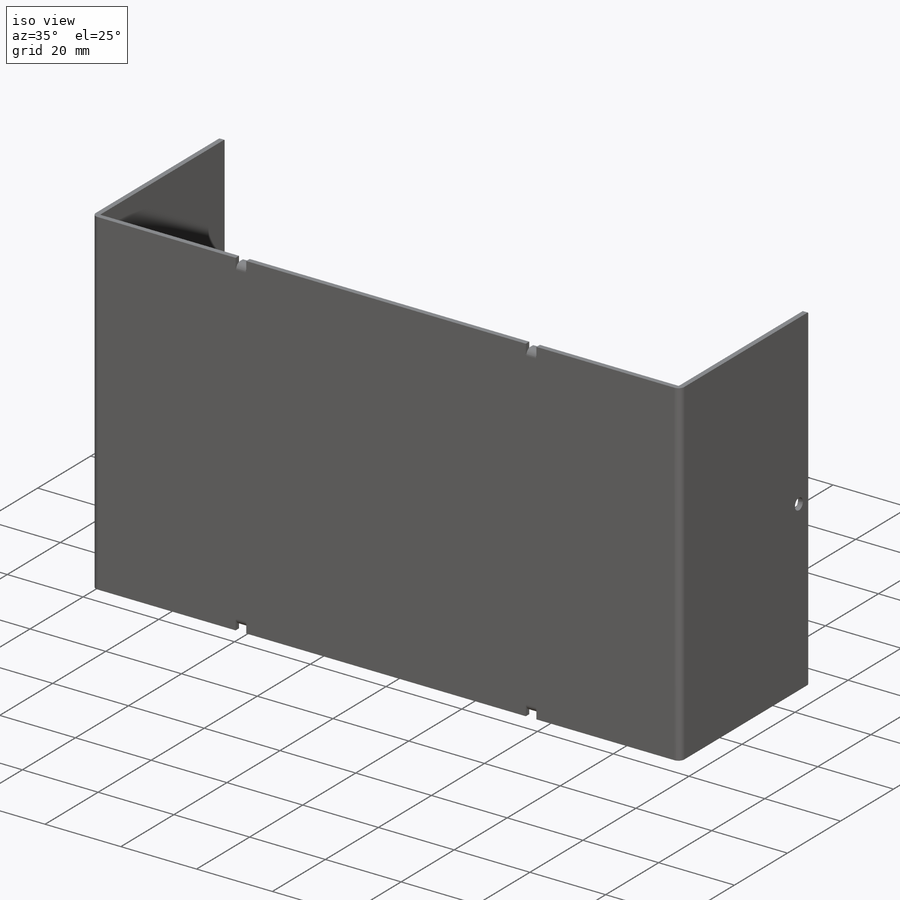
[diagram: iso view]
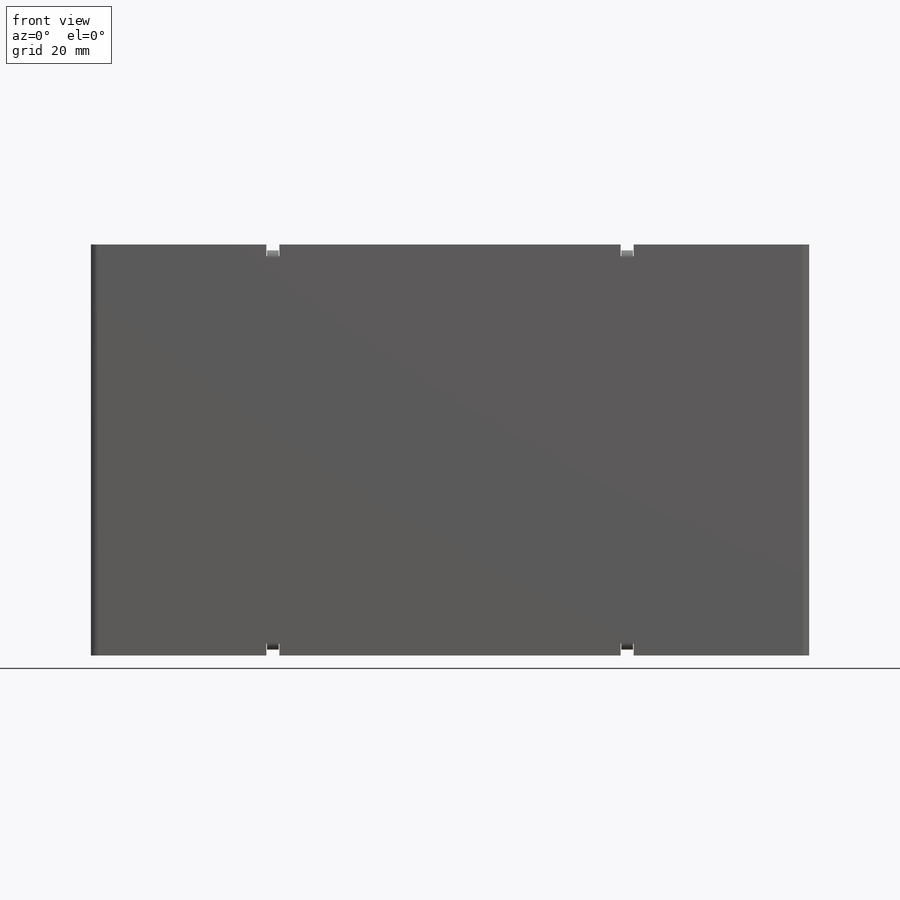
[diagram: front view]
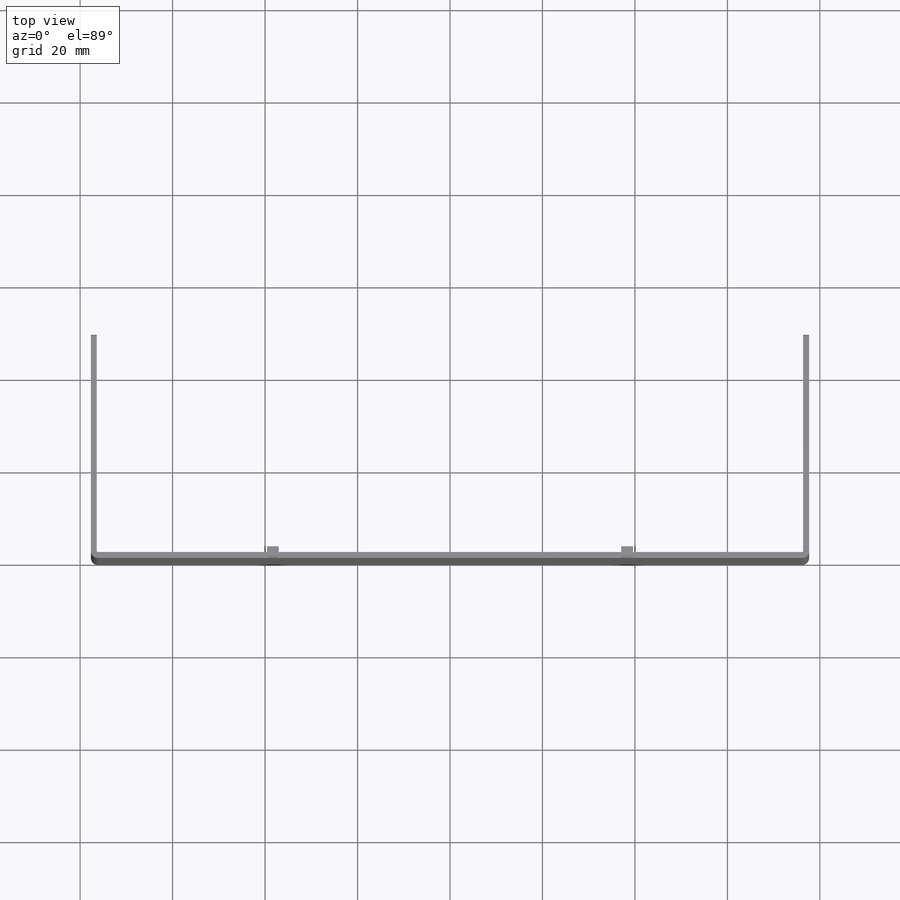
[diagram: top view]
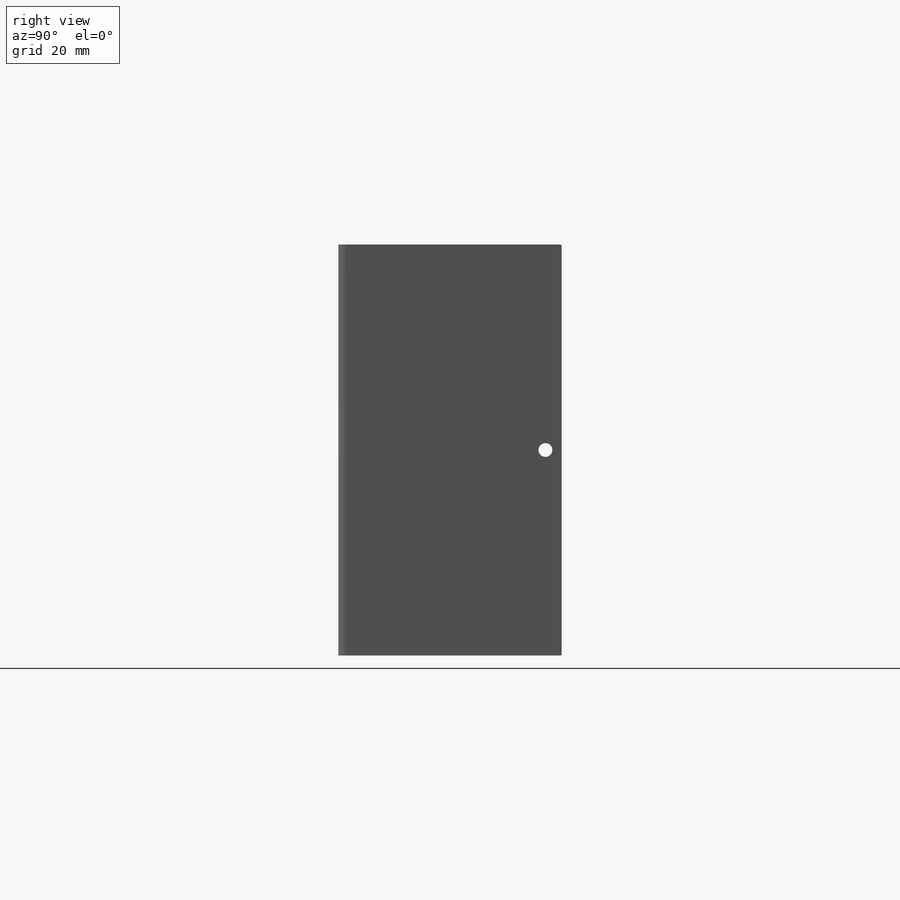
[diagram: right view]
SOLIDWORKS PART (.sldprt)
format: sldprt  version: not decoded by parser v0  size: 555,520 bytes
history: native  units: mm
features: sketch x30, sheet_metal_op x15, mirror x3, material x1, hole x1, surface_op x1 + 11 further entries (+14 scaffold rows collapsed; 10 parser-record rows omitted)
feature tree (86):
  scaffold x14  (default folders/planes/origin — collapsed)
  material  "5052-H36"
  "Cut-List-Item2"
  sketch  "Sketch1"  dims[c1.D1=152.4mm c1.D2=88.9mm c2.D1=1.905mm c2.D2=0.5 c2.D3=0.0mm c2.D6=250.0mm]
  sheet_metal_op  "Base-Flange1"
  sketch  "Sketch10"
  sketch  "Sketch11"  dims[D1=0.254mm D4=90.0deg D5=1.0 D8=~0.32258mm D9=~0.32258mm]
  sheet_metal_op  "EdgeBend2"
  hole  "M3x0.5 Tapped Hole1"  Diameter=3mm Depth=155.36164mm
  sketch  "Sketch13"  dims[D1=3.4925mm]
  sketch  "Sketch12"  dims[hole-wizard template sketch: 60 standard entries collapsed; hole parameters kept: c18.Thru Tap Drill Depth=~155.36164mm]
  mirror  "Mirror1"
  sketch  "Sketch14"  dims[D1=2.54mm D2=2.54mm D3=38.1mm]
  parser-record x10  (decoder bookkeeping rows leaked as tree rows — omitted from the tree; the rows remain in map.json)
  surface_op  "Surface-Extrude1"
  "Cut-Thicken2"
  mirror  "Mirror6"
  mirror  "Mirror7"  Edge-Flange2=0
  sketch  "Sketch22"
  sketch  "Sketch24"
  sketch  "Sketch26"
  sketch  "Sketch28"
  sheet_metal_op  "EdgeBend3"
  sheet_metal_op  "EdgeBend4"
  sheet_metal_op  "EdgeBend5"
  sheet_metal_op  "EdgeBend6"
  sketch  "Bend-Lines1"
  sketch  "Bounding-Box1"
  sheet_metal_op  "Sheet-Metal(1)"
  "Flat-Pattern(1)"
  sketch  "Bend-Lines2"
  sketch  "Bounding-Box2"
  sheet_metal_op  "Sheet-Metal(2)"
  "Flat-Pattern(1)"
  sketch  "Bend-Lines2"
  sketch  "Bounding-Box2"
  sheet_metal_op  "Sheet-Metal(3)"
  "Flat-Pattern(1)"
  sketch  "Bend-Lines2"
  sketch  "Bounding-Box2"
  sheet_metal_op  "Sheet-Metal(4)"
  "Flat-Pattern(1)"
  sketch  "Bend-Lines2"
  sketch  "Bounding-Box2"
  sheet_metal_op  "Sheet-Metal(7)"
  "Flat-Pattern(7)"
  sketch  "Bend-Lines3"
  sketch  "Bounding-Box3"
  sheet_metal_op  "Sheet-Metal(8)"
  "Flat-Pattern(8)"
  sketch  "Bend-Lines4"
  sketch  "Bounding-Box4"
  sheet_metal_op  "Sheet-Metal(9)"
  "Flat-Pattern(8)"
  sketch  "Bend-Lines4"
  sketch  "Bounding-Box4"
  sheet_metal_op  "Sheet-Metal(10)"
  "Flat-Pattern(8)"
  sketch  "Bend-Lines4"
  sketch  "Bounding-Box4"
  sheet_metal_op  "Sheet-Metal(11)"
  "Flat-Pattern(8)"
  sketch  "Bend-Lines4"
  sketch  "Bounding-Box4"
decode coverage: 7 of 50 modeling features carry decoded parameters; 11 rows unclassified (native names shown)
note: ~ marks probable driven/reference dimensions
note: suppression state not decoded; provenance and decode notes live in map.json
